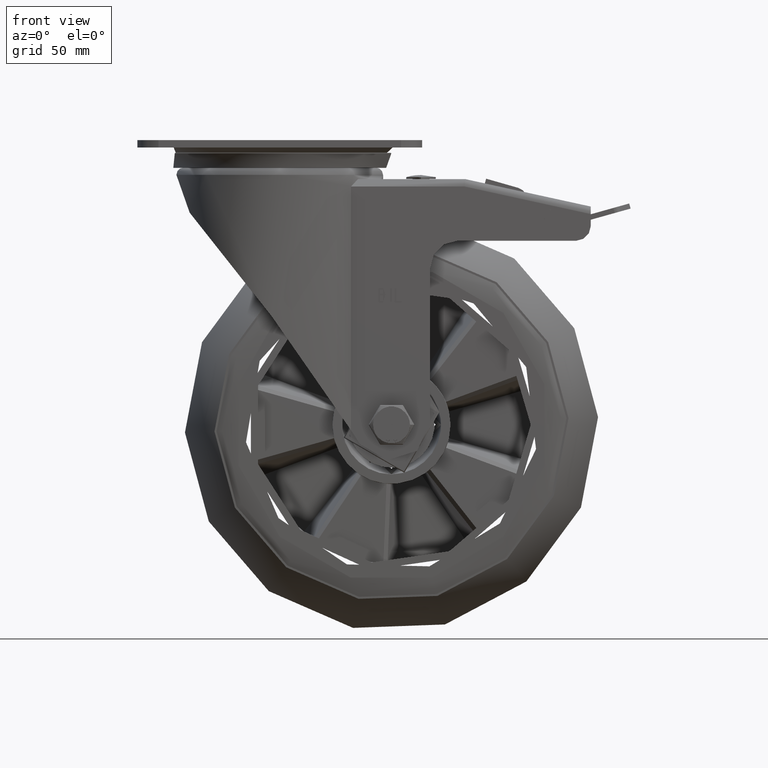
[diagram: clean part render]
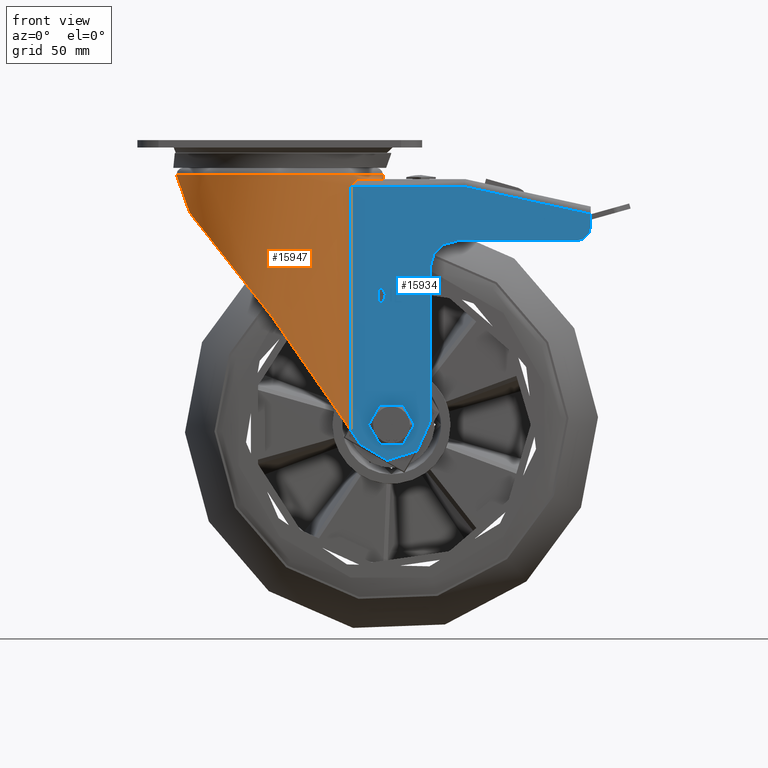
[diagram: same view with the hole feature highlighted: cylindrical wall and planar end face, labeled with their STEP entity ids]
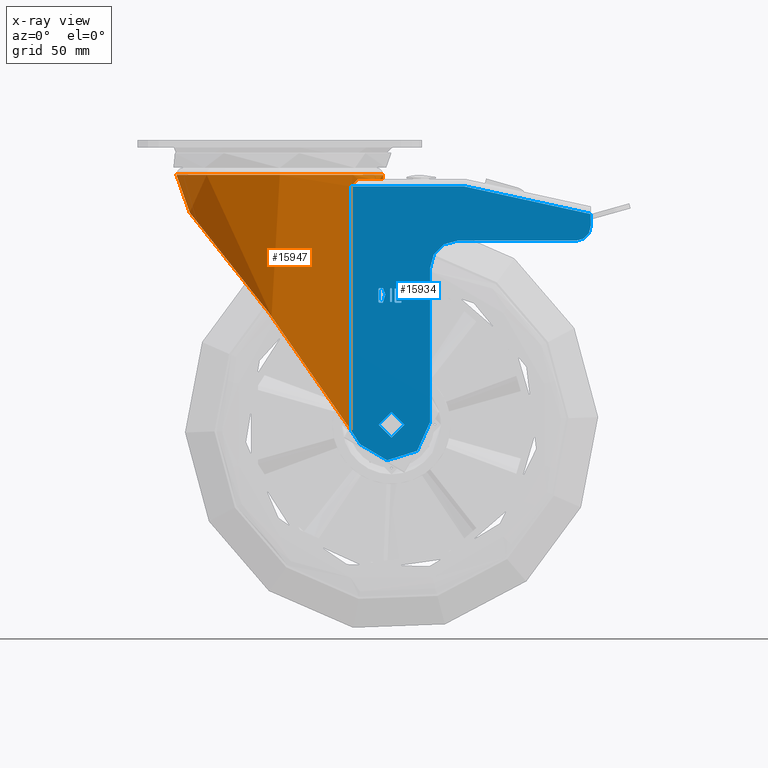
[diagram: x-ray of the same camera — body ghosted, the hole faces saturated]
A machine part, front view. The highlighted faces form one hole feature of diameter 98 mm: the cylindrical wall (entity #15947, orange) and its adjacent planar end face (entity #15934, blue) — they share a circular edge in the B-rep.
The next image is the same camera in x-ray (body ghosted, the hole faces saturated) — the bore reads through the body.
Wall:
#1439=B_SPLINE_CURVE_WITH_KNOTS('',3,(#25761,#25762,#25763,#25764,#25765,
#25766,#25767,#25768,#25769,#25770),.UNSPECIFIED.,.F.,.F.,(4,2,2,2,4),(1.2333427449953,
1.36507828815,1.4968138313047,1.68022470843184,1.86363558555898),
 .UNSPECIFIED.);
#1452=B_SPLINE_CURVE_WITH_KNOTS('',3,(#26059,#26060,#26061,#26062,#26063,
#26064,#26065,#26066,#26067,#26068),.UNSPECIFIED.,.F.,.F.,(4,2,2,2,4),(-0.630292840563673,
-0.446881963436534,-0.263471086309396,-0.131735543154698,0.),
 .UNSPECIFIED.);
#1453=B_SPLINE_CURVE_WITH_KNOTS('',3,(#26080,#26081,#26082,#26083,#26084,
#26085,#26086,#26087,#26088,#26089,#26090,#26091,#26092,#26093,#26094,#26095,
#26096,#26097,#26098,#26099,#26100,#26101,#26102,#26103,#26104,#26105,#26106,
#26107,#26108,#26109,#26110,#26111,#26112,#26113,#26114,#26115,#26116,#26117,
#26118,#26119,#26120,#26121,#26122,#26123,#26124,#26125,#26126,#26127,#26128,
#26129),.UNSPECIFIED.,.F.,.F.,(4,2,2,2,2,2,2,2,2,2,2,2,2,2,2,2,2,2,2,2,
2,2,2,2,4),(-34.3032403400869,-33.121356405522,-31.8297766614609,-29.2466171733387,
-26.6634576852165,-25.3933203126568,-24.123182940097,-22.8530455675372,
-21.5829081949775,-20.8116931009463,-20.0404780069151,-19.2692629128839,
-18.4980478188527,-17.7268327248215,-16.9556176307903,-16.184402536759,
-15.4131874427278,-14.1430500701681,-12.8729126976083,-11.6027753250486,
-10.3326379524888,-7.7494784643666,-5.1663189762444,-3.8747392321833,-2.69285529761841),
 .UNSPECIFIED.);
#2203=FACE_OUTER_BOUND('',#3173,.T.);
#3173=EDGE_LOOP('',(#11477,#11478,#11479,#11480,#11481,#11482,#11483,#11484,
#11485,#11486));
#4262=LINE('',#25782,#5353);
#4300=LINE('',#26076,#5391);
#4301=LINE('',#26079,#5392);
#5353=VECTOR('',#19136,10.);
#5391=VECTOR('',#19236,49.);
#5392=VECTOR('',#19239,10.);
#6439=CIRCLE('',#17309,49.);
#6440=CIRCLE('',#17310,49.);
#6449=CIRCLE('',#17334,49.);
#7097=VERTEX_POINT('',#25758);
#7098=VERTEX_POINT('',#25760);
#7102=VERTEX_POINT('',#25781);
#7131=VERTEX_POINT('',#25948);
#7132=VERTEX_POINT('',#25950);
#7156=VERTEX_POINT('',#26057);
#7158=VERTEX_POINT('',#26075);
#7159=VERTEX_POINT('',#26078);
#8754=EDGE_CURVE('',#7097,#7098,#1439,.F.);
#8760=EDGE_CURVE('',#7102,#7098,#4262,.T.);
#8791=EDGE_CURVE('',#7132,#7131,#6439,.T.);
#8792=EDGE_CURVE('',#7097,#7132,#6440,.T.);
#8826=EDGE_CURVE('',#7156,#7131,#1452,.F.);
#8830=EDGE_CURVE('',#7132,#7158,#4300,.T.);
#8831=EDGE_CURVE('',#7158,#7158,#6449,.T.);
#8832=EDGE_CURVE('',#7156,#7159,#4301,.T.);
#8833=EDGE_CURVE('',#7159,#7102,#1453,.T.);
#11477=ORIENTED_EDGE('',*,*,#8792,.T.);
#11478=ORIENTED_EDGE('',*,*,#8830,.T.);
#11479=ORIENTED_EDGE('',*,*,#8831,.F.);
#11480=ORIENTED_EDGE('',*,*,#8830,.F.);
#11481=ORIENTED_EDGE('',*,*,#8791,.T.);
#11482=ORIENTED_EDGE('',*,*,#8826,.F.);
#11483=ORIENTED_EDGE('',*,*,#8832,.T.);
#11484=ORIENTED_EDGE('',*,*,#8833,.T.);
#11485=ORIENTED_EDGE('',*,*,#8760,.T.);
#11486=ORIENTED_EDGE('',*,*,#8754,.F.);
#15646=CYLINDRICAL_SURFACE('',#17333,49.);
#15947=ADVANCED_FACE('',(#2203),#15646,.T.);
#17309=AXIS2_PLACEMENT_3D('',#25951,#19164,#19165);
#17310=AXIS2_PLACEMENT_3D('',#25952,#19166,#19167);
#17333=AXIS2_PLACEMENT_3D('',#26074,#19234,#19235);
#17334=AXIS2_PLACEMENT_3D('',#26077,#19237,#19238);
#19136=DIRECTION('',(0.,0.,1.));
#19164=DIRECTION('center_axis',(0.,0.,1.));
#19165=DIRECTION('ref_axis',(-1.,0.,0.));
#19166=DIRECTION('center_axis',(0.,0.,1.));
#19167=DIRECTION('ref_axis',(-1.,0.,0.));
#19234=DIRECTION('center_axis',(0.,0.,-1.));
#19235=DIRECTION('ref_axis',(-1.,0.,0.));
#19236=DIRECTION('',(0.,0.,1.));
#19237=DIRECTION('center_axis',(0.,0.,1.));
#19238=DIRECTION('ref_axis',(1.,1.22464679914735E-16,0.));
#19239=DIRECTION('',(0.,0.,-1.));
#25758=CARTESIAN_POINT('',(37.1079506305589,-32.,-18.5));
#25760=CARTESIAN_POINT('',(33.7749907475931,-35.5,-22.));
#25761=CARTESIAN_POINT('Ctrl Pts',(33.7749907475931,-35.5,-22.));
#25762=CARTESIAN_POINT('Ctrl Pts',(33.7749907475931,-35.5,-21.5608815228177));
#25763=CARTESIAN_POINT('Ctrl Pts',(33.867516356422,-35.4124752488968,-21.1110762642486));
#25764=CARTESIAN_POINT('Ctrl Pts',(34.1958587312692,-35.0955170049765,-20.310932885588));
#25765=CARTESIAN_POINT('Ctrl Pts',(34.4296971544126,-34.8670802758889,-19.9593900856269));
#25766=CARTESIAN_POINT('Ctrl Pts',(35.008738658068,-34.2872520991695,-19.3020960854189));
#25767=CARTESIAN_POINT('Ctrl Pts',(35.4182958169782,-33.8663968361622,-18.9975415200234));
#25768=CARTESIAN_POINT('Ctrl Pts',(36.2682962410604,-32.9545019837756,-18.5960140801809));
#25769=CARTESIAN_POINT('Ctrl Pts',(36.7086888572209,-32.462993317928,-18.5));
#25770=CARTESIAN_POINT('Ctrl Pts',(37.1079506305589,-32.,-18.5));
#25781=CARTESIAN_POINT('',(33.7749907475931,-35.5,-137.628128237067));
#25782=CARTESIAN_POINT('',(33.7749907475931,-35.5,-13.));
#25948=CARTESIAN_POINT('',(37.107950630559,32.,-18.5));
#25950=CARTESIAN_POINT('',(49.,-6.00076931582203E-15,-18.5));
#25951=CARTESIAN_POINT('Origin',(0.,0.,-18.5));
#25952=CARTESIAN_POINT('Origin',(0.,0.,-18.5));
#26057=CARTESIAN_POINT('',(33.7749907475931,35.5,-22.));
#26059=CARTESIAN_POINT('Ctrl Pts',(37.107950630559,32.,-18.5));
#26060=CARTESIAN_POINT('Ctrl Pts',(36.708688857221,32.462993317928,-18.5));
#26061=CARTESIAN_POINT('Ctrl Pts',(36.2682962410604,32.9545019837756,-18.5960140801809));
#26062=CARTESIAN_POINT('Ctrl Pts',(35.4182958169782,33.8663968361621,-18.9975415200233));
#26063=CARTESIAN_POINT('Ctrl Pts',(35.0087386580681,34.2872520991695,-19.3020960854189));
#26064=CARTESIAN_POINT('Ctrl Pts',(34.4296971544126,34.8670802758889,-19.9593900856269));
#26065=CARTESIAN_POINT('Ctrl Pts',(34.1958587312692,35.0955170049765,-20.310932885588));
#26066=CARTESIAN_POINT('Ctrl Pts',(33.8675163564221,35.4124752488968,-21.1110762642486));
#26067=CARTESIAN_POINT('Ctrl Pts',(33.7749907475931,35.5,-21.5608815228177));
#26068=CARTESIAN_POINT('Ctrl Pts',(33.7749907475931,35.5,-22.));
#26074=CARTESIAN_POINT('Origin',(0.,0.,-13.));
#26075=CARTESIAN_POINT('',(49.,6.00076931582203E-15,-16.5));
#26076=CARTESIAN_POINT('',(49.,-6.00076931582203E-15,-13.));
#26077=CARTESIAN_POINT('Origin',(0.,0.,-16.5));
#26078=CARTESIAN_POINT('',(33.7749907475931,35.5,-137.628128237068));
#26079=CARTESIAN_POINT('',(33.7749907475931,35.5,-13.));
#26080=CARTESIAN_POINT('Ctrl Pts',(33.7749907475931,35.5,-137.628128237068));
#26081=CARTESIAN_POINT('Ctrl Pts',(31.890673622914,37.2927547451146,-134.72857310143));
#26082=CARTESIAN_POINT('Ctrl Pts',(29.9141849445323,38.8893346304259,-131.718802318493));
#26083=CARTESIAN_POINT('Ctrl Pts',(25.6139473405629,41.8613945871662,-125.248462476776));
#26084=CARTESIAN_POINT('Ctrl Pts',(23.2748903933643,43.2020224765733,-121.771845343413));
#26085=CARTESIAN_POINT('Ctrl Pts',(16.0235733843273,46.6131544903223,-111.139798905136));
#26086=CARTESIAN_POINT('Ctrl Pts',(10.9038309000844,48.0584606433874,-103.825647254466));
#26087=CARTESIAN_POINT('Ctrl Pts',(0.485070609769471,49.277518944835,-89.3489361436049));
#26088=CARTESIAN_POINT('Ctrl Pts',(-4.81409558714125,49.0473378744351,-82.1861525379713));
#26089=CARTESIAN_POINT('Ctrl Pts',(-12.5167341274851,47.4453011114139,-72.0333466357436));
#26090=CARTESIAN_POINT('Ctrl Pts',(-15.1766436726071,46.6797262276463,-68.5702429239683));
#26091=CARTESIAN_POINT('Ctrl Pts',(-20.5508696216654,44.5756560454426,-61.6655948654499));
#26092=CARTESIAN_POINT('Ctrl Pts',(-23.2651620509435,43.2371067401469,-58.2240483158236));
#26093=CARTESIAN_POINT('Ctrl Pts',(-28.5561615277787,39.9407173630937,-51.5978458034889));
#26094=CARTESIAN_POINT('Ctrl Pts',(-31.1338935548524,37.982292476726,-48.4117220223424));
#26095=CARTESIAN_POINT('Ctrl Pts',(-35.962869987624,33.4461634923415,-42.5061510380744));
#26096=CARTESIAN_POINT('Ctrl Pts',(-38.2141078206829,30.8688294649591,-39.7864142148577));
#26097=CARTESIAN_POINT('Ctrl Pts',(-41.4225261030982,26.2616300337113,-35.9417949009816));
#26098=CARTESIAN_POINT('Ctrl Pts',(-42.6101879953735,24.3116702229906,-34.52696715018));
#26099=CARTESIAN_POINT('Ctrl Pts',(-44.7693634603241,20.0596492007216,-31.9666965445606));
#26100=CARTESIAN_POINT('Ctrl Pts',(-45.7403882367072,17.7571042945652,-30.8216448355646));
#26101=CARTESIAN_POINT('Ctrl Pts',(-47.3360343930887,12.9150255701949,-28.9456808192258));
#26102=CARTESIAN_POINT('Ctrl Pts',(-47.9616604315939,10.3701433527348,-28.2133971061128));
#26103=CARTESIAN_POINT('Ctrl Pts',(-48.7938612082863,5.19806245894011,-27.240352916525));
#26104=CARTESIAN_POINT('Ctrl Pts',(-49.0000000000001,2.57071698010402,-27.0000000000044));
#26105=CARTESIAN_POINT('Ctrl Pts',(-49.0000000000001,-2.57071698010402,
-27.0000000000044));
#26106=CARTESIAN_POINT('Ctrl Pts',(-48.7938612082863,-5.19806245894012,
-27.240352916525));
#26107=CARTESIAN_POINT('Ctrl Pts',(-47.9616604315939,-10.3701433527349,
-28.2133971061128));
#26108=CARTESIAN_POINT('Ctrl Pts',(-47.3360343930887,-12.9150255701949,
-28.9456808192258));
#26109=CARTESIAN_POINT('Ctrl Pts',(-45.7403882367072,-17.7571042945652,
-30.8216448355646));
#26110=CARTESIAN_POINT('Ctrl Pts',(-44.7693634603241,-20.0596492007216,
-31.9666965445606));
#26111=CARTESIAN_POINT('Ctrl Pts',(-42.6101879953735,-24.3116702229906,
-34.52696715018));
#26112=CARTESIAN_POINT('Ctrl Pts',(-41.4225261030982,-26.2616300337114,
-35.9417949009816));
#26113=CARTESIAN_POINT('Ctrl Pts',(-38.2141078206829,-30.8688294649591,
-39.7864142148577));
#26114=CARTESIAN_POINT('Ctrl Pts',(-35.962869987624,-33.4461634923415,-42.5061510380744));
#26115=CARTESIAN_POINT('Ctrl Pts',(-31.1338935548524,-37.982292476726,-48.4117220223424));
#26116=CARTESIAN_POINT('Ctrl Pts',(-28.5561615277787,-39.9407173630937,
-51.5978458034889));
#26117=CARTESIAN_POINT('Ctrl Pts',(-23.2651620509435,-43.2371067401469,
-58.2240483158236));
#26118=CARTESIAN_POINT('Ctrl Pts',(-20.5508696216654,-44.5756560454426,
-61.6655948654499));
#26119=CARTESIAN_POINT('Ctrl Pts',(-15.1766436726071,-46.6797262276463,
-68.5702429239683));
#26120=CARTESIAN_POINT('Ctrl Pts',(-12.5167341274852,-47.4453011114139,
-72.0333466357436));
#26121=CARTESIAN_POINT('Ctrl Pts',(-4.81409558714124,-49.0473378744351,
-82.1861525379713));
#26122=CARTESIAN_POINT('Ctrl Pts',(0.485070609769472,-49.277518944835,-89.3489361436049));
#26123=CARTESIAN_POINT('Ctrl Pts',(10.9038309000844,-48.0584606433874,-103.825647254466));
#26124=CARTESIAN_POINT('Ctrl Pts',(16.0235733843273,-46.6131544903223,-111.139798905136));
#26125=CARTESIAN_POINT('Ctrl Pts',(23.2748903933643,-43.2020224765733,-121.771845343413));
#26126=CARTESIAN_POINT('Ctrl Pts',(25.6139473405629,-41.8613945871662,-125.248462476776));
#26127=CARTESIAN_POINT('Ctrl Pts',(29.9141849445323,-38.8893346304259,-131.718802318493));
#26128=CARTESIAN_POINT('Ctrl Pts',(31.8906736229139,-37.2927547451146,-134.72857310143));
#26129=CARTESIAN_POINT('Ctrl Pts',(33.7749907475931,-35.5,-137.628128237067));
End face:
#814=FACE_BOUND('',#3155,.T.);
#815=FACE_BOUND('',#3156,.T.);
#816=FACE_BOUND('',#3157,.T.);
#817=FACE_BOUND('',#3158,.T.);
#1019=PLANE('',#17302);
#1440=B_SPLINE_CURVE_WITH_KNOTS('',3,(#25800,#25801,#25802,#25803,#25804,
#25805,#25806,#25807,#25808,#25809,#25810,#25811,#25812,#25813,#25814,#25815,
#25816,#25817,#25818),.UNSPECIFIED.,.F.,.F.,(4,3,3,3,3,3,4),(-0.60080317019458,
-0.563118176464692,-0.525433182734805,-0.487748189004918,-0.450063195275034,
-0.406211969492819,-0.362360743710606),.UNSPECIFIED.);
#1441=B_SPLINE_CURVE_WITH_KNOTS('',3,(#25820,#25821,#25822,#25823,#25824,
#25825,#25826,#25827,#25828,#25829,#25830,#25831,#25832,#25833,#25834,#25835,
#25836,#25837,#25838),.UNSPECIFIED.,.F.,.F.,(4,3,3,3,3,3,4),(-0.219643531868976,
-0.176207668124657,-0.132771804380337,-0.0995788532852541,-0.0663859021901701,
-0.0331929510950853,0.),.UNSPECIFIED.);
#1442=B_SPLINE_CURVE_WITH_KNOTS('',3,(#25842,#25843,#25844,#25845,#25846,
#25847,#25848),.UNSPECIFIED.,.F.,.F.,(4,3,4),(-0.0596402286140081,-0.0298201143070024,
0.),.UNSPECIFIED.);
#1443=B_SPLINE_CURVE_WITH_KNOTS('',3,(#25852,#25853,#25854,#25855,#25856,
#25857,#25858),.UNSPECIFIED.,.F.,.F.,(4,3,4),(-0.0620540498798335,-0.0310270249399167,
0.),.UNSPECIFIED.);
#1444=B_SPLINE_CURVE_WITH_KNOTS('',3,(#25862,#25863,#25864,#25865,#25866,
#25867,#25868,#25869,#25870,#25871,#25872,#25873),.UNSPECIFIED.,.F.,.F.,
(4,2,2,2,2,4),(-0.117389953231259,-0.113409660235466,-0.109596369111217,
-0.101178291345145,-0.0910412051839382,-0.0789306874044836),
 .UNSPECIFIED.);
#1445=B_SPLINE_CURVE_WITH_KNOTS('',3,(#25875,#25876,#25877,#25878,#25879,
#25880,#25881),.UNSPECIFIED.,.F.,.F.,(4,3,4),(-0.0715137537498869,-0.035756876874944,
0.),.UNSPECIFIED.);
#1446=B_SPLINE_CURVE_WITH_KNOTS('',3,(#25885,#25886,#25887,#25888,#25889,
#25890,#25891,#25892,#25893,#25894,#25895,#25896,#25897),.UNSPECIFIED.,
 .F.,.F.,(4,3,3,3,4),(-0.0877021978074577,-0.065860555374395,-0.044018912941333,
-0.0220094564706652,0.),.UNSPECIFIED.);
#1447=B_SPLINE_CURVE_WITH_KNOTS('',3,(#25901,#25902,#25903,#25904,#25905,
#25906,#25907,#25908,#25909,#25910,#25911,#25912,#25913),.UNSPECIFIED.,
 .F.,.F.,(4,3,3,3,4),(-0.114027724543543,-0.085410858639111,-0.0567939927346791,
-0.0283969963673392,0.),.UNSPECIFIED.);
#1448=B_SPLINE_CURVE_WITH_KNOTS('',3,(#25921,#25922,#25923,#25924,#25925,
#25926,#25927,#25928,#25929,#25930,#25931,#25932,#25933),.UNSPECIFIED.,
 .F.,.F.,(4,3,3,3,4),(-0.0857793063723791,-0.0644252927170668,-0.0430712790617538,
-0.0215356395308769,0.),.UNSPECIFIED.);
#1449=B_SPLINE_CURVE_WITH_KNOTS('',3,(#25937,#25938,#25939,#25940,#25941,
#25942,#25943),.UNSPECIFIED.,.F.,.F.,(4,3,4),(-0.0596402286144903,-0.0298201143072435,
0.),.UNSPECIFIED.);
#2190=FACE_OUTER_BOUND('',#3154,.T.);
#3154=EDGE_LOOP('',(#11372,#11373,#11374,#11375,#11376,#11377,#11378,#11379,
#11380,#11381));
#3155=EDGE_LOOP('',(#11382));
#3156=EDGE_LOOP('',(#11383,#11384,#11385,#11386,#11387,#11388,#11389));
#3157=EDGE_LOOP('',(#11390,#11391,#11392,#11393,#11394));
#3158=EDGE_LOOP('',(#11395,#11396,#11397,#11398,#11399,#11400,#11401,#11402));
#4259=LINE('',#25772,#5350);
#4260=LINE('',#25776,#5351);
#4262=LINE('',#25782,#5353);
#4263=LINE('',#25788,#5354);
#4264=LINE('',#25792,#5355);
#4265=LINE('',#25795,#5356);
#4266=LINE('',#25840,#5357);
#4267=LINE('',#25850,#5358);
#4268=LINE('',#25859,#5359);
#4269=LINE('',#25883,#5360);
#4270=LINE('',#25898,#5361);
#4271=LINE('',#25915,#5362);
#4272=LINE('',#25917,#5363);
#4273=LINE('',#25919,#5364);
#4274=LINE('',#25935,#5365);
#4275=LINE('',#25944,#5366);
#5350=VECTOR('',#19125,10.);
#5351=VECTOR('',#19130,10.);
#5353=VECTOR('',#19136,10.);
#5354=VECTOR('',#19141,10.);
#5355=VECTOR('',#19144,10.);
#5356=VECTOR('',#19147,10.);
#5357=VECTOR('',#19150,10.);
#5358=VECTOR('',#19151,10.);
#5359=VECTOR('',#19152,10.);
#5360=VECTOR('',#19153,10.);
#5361=VECTOR('',#19154,10.);
#5362=VECTOR('',#19155,10.);
#5363=VECTOR('',#19156,10.);
#5364=VECTOR('',#19157,10.);
#5365=VECTOR('',#19158,10.);
#5366=VECTOR('',#19159,10.);
#6434=CIRCLE('',#17303,1046.12512811784);
#6435=CIRCLE('',#17304,18.3);
#6436=CIRCLE('',#17305,13.);
#6437=CIRCLE('',#17306,7.);
#6438=CIRCLE('',#17307,6.1);
#7098=VERTEX_POINT('',#25760);
#7099=VERTEX_POINT('',#25771);
#7100=VERTEX_POINT('',#25775);
#7102=VERTEX_POINT('',#25781);
#7103=VERTEX_POINT('',#25783);
#7104=VERTEX_POINT('',#25785);
#7105=VERTEX_POINT('',#25787);
#7106=VERTEX_POINT('',#25789);
#7107=VERTEX_POINT('',#25791);
#7108=VERTEX_POINT('',#25793);
#7109=VERTEX_POINT('',#25796);
#7110=VERTEX_POINT('',#25798);
#7111=VERTEX_POINT('',#25799);
#7112=VERTEX_POINT('',#25819);
#7113=VERTEX_POINT('',#25839);
#7114=VERTEX_POINT('',#25841);
#7115=VERTEX_POINT('',#25849);
#7116=VERTEX_POINT('',#25851);
#7117=VERTEX_POINT('',#25860);
#7118=VERTEX_POINT('',#25861);
#7119=VERTEX_POINT('',#25874);
#7120=VERTEX_POINT('',#25882);
#7121=VERTEX_POINT('',#25884);
#7122=VERTEX_POINT('',#25899);
#7123=VERTEX_POINT('',#25900);
#7124=VERTEX_POINT('',#25914);
#7125=VERTEX_POINT('',#25916);
#7126=VERTEX_POINT('',#25918);
#7127=VERTEX_POINT('',#25920);
#7128=VERTEX_POINT('',#25934);
#7129=VERTEX_POINT('',#25936);
#8755=EDGE_CURVE('',#7098,#7099,#4259,.T.);
#8757=EDGE_CURVE('',#7099,#7100,#4260,.T.);
#8760=EDGE_CURVE('',#7102,#7098,#4262,.T.);
#8761=EDGE_CURVE('',#7102,#7103,#6434,.F.);
#8762=EDGE_CURVE('',#7103,#7104,#6435,.T.);
#8763=EDGE_CURVE('',#7104,#7105,#4263,.F.);
#8764=EDGE_CURVE('',#7106,#7105,#6436,.T.);
#8765=EDGE_CURVE('',#7106,#7107,#4264,.F.);
#8766=EDGE_CURVE('',#7108,#7107,#6437,.F.);
#8767=EDGE_CURVE('',#7100,#7108,#4265,.F.);
#8768=EDGE_CURVE('',#7109,#7109,#6438,.F.);
#8769=EDGE_CURVE('',#7110,#7111,#1440,.T.);
#8770=EDGE_CURVE('',#7111,#7112,#1441,.T.);
#8771=EDGE_CURVE('',#7112,#7113,#4266,.T.);
#8772=EDGE_CURVE('',#7113,#7114,#1442,.T.);
#8773=EDGE_CURVE('',#7114,#7115,#4267,.T.);
#8774=EDGE_CURVE('',#7115,#7116,#1443,.T.);
#8775=EDGE_CURVE('',#7116,#7110,#4268,.T.);
#8776=EDGE_CURVE('',#7117,#7118,#1444,.T.);
#8777=EDGE_CURVE('',#7118,#7119,#1445,.T.);
#8778=EDGE_CURVE('',#7119,#7120,#4269,.T.);
#8779=EDGE_CURVE('',#7120,#7121,#1446,.T.);
#8780=EDGE_CURVE('',#7121,#7117,#4270,.T.);
#8781=EDGE_CURVE('',#7122,#7123,#1447,.T.);
#8782=EDGE_CURVE('',#7123,#7124,#4271,.T.);
#8783=EDGE_CURVE('',#7124,#7125,#4272,.T.);
#8784=EDGE_CURVE('',#7125,#7126,#4273,.T.);
#8785=EDGE_CURVE('',#7126,#7127,#1448,.T.);
#8786=EDGE_CURVE('',#7127,#7128,#4274,.T.);
#8787=EDGE_CURVE('',#7128,#7129,#1449,.T.);
#8788=EDGE_CURVE('',#7129,#7122,#4275,.T.);
#11372=ORIENTED_EDGE('',*,*,#8757,.F.);
#11373=ORIENTED_EDGE('',*,*,#8755,.F.);
#11374=ORIENTED_EDGE('',*,*,#8760,.F.);
#11375=ORIENTED_EDGE('',*,*,#8761,.T.);
#11376=ORIENTED_EDGE('',*,*,#8762,.T.);
#11377=ORIENTED_EDGE('',*,*,#8763,.T.);
#11378=ORIENTED_EDGE('',*,*,#8764,.F.);
#11379=ORIENTED_EDGE('',*,*,#8765,.T.);
#11380=ORIENTED_EDGE('',*,*,#8766,.F.);
#11381=ORIENTED_EDGE('',*,*,#8767,.F.);
#11382=ORIENTED_EDGE('',*,*,#8768,.T.);
#11383=ORIENTED_EDGE('',*,*,#8769,.T.);
#11384=ORIENTED_EDGE('',*,*,#8770,.T.);
#11385=ORIENTED_EDGE('',*,*,#8771,.T.);
#11386=ORIENTED_EDGE('',*,*,#8772,.T.);
#11387=ORIENTED_EDGE('',*,*,#8773,.T.);
#11388=ORIENTED_EDGE('',*,*,#8774,.T.);
#11389=ORIENTED_EDGE('',*,*,#8775,.T.);
#11390=ORIENTED_EDGE('',*,*,#8776,.T.);
#11391=ORIENTED_EDGE('',*,*,#8777,.T.);
#11392=ORIENTED_EDGE('',*,*,#8778,.T.);
#11393=ORIENTED_EDGE('',*,*,#8779,.T.);
#11394=ORIENTED_EDGE('',*,*,#8780,.T.);
#11395=ORIENTED_EDGE('',*,*,#8781,.T.);
#11396=ORIENTED_EDGE('',*,*,#8782,.T.);
#11397=ORIENTED_EDGE('',*,*,#8783,.T.);
#11398=ORIENTED_EDGE('',*,*,#8784,.T.);
#11399=ORIENTED_EDGE('',*,*,#8785,.T.);
#11400=ORIENTED_EDGE('',*,*,#8786,.T.);
#11401=ORIENTED_EDGE('',*,*,#8787,.T.);
#11402=ORIENTED_EDGE('',*,*,#8788,.T.);
#15934=ADVANCED_FACE('',(#2190,#814,#815,#816,#817),#1019,.T.);
#17302=AXIS2_PLACEMENT_3D('',#25780,#19134,#19135);
#17303=AXIS2_PLACEMENT_3D('',#25784,#19137,#19138);
#17304=AXIS2_PLACEMENT_3D('',#25786,#19139,#19140);
#17305=AXIS2_PLACEMENT_3D('',#25790,#19142,#19143);
#17306=AXIS2_PLACEMENT_3D('',#25794,#19145,#19146);
#17307=AXIS2_PLACEMENT_3D('',#25797,#19148,#19149);
#19125=DIRECTION('',(1.,1.24196705560202E-16,0.));
#19130=DIRECTION('',(0.976953544828229,1.21334411753027E-16,-0.213452035004487));
#19134=DIRECTION('center_axis',(1.24196705560202E-16,-1.,0.));
#19135=DIRECTION('ref_axis',(-1.,-1.24196705560202E-16,0.));
#19136=DIRECTION('',(0.,0.,1.));
#19137=DIRECTION('center_axis',(1.24196705560202E-16,-1.,0.));
#19138=DIRECTION('ref_axis',(0.7593703123321,0.,0.65065868836791));
#19139=DIRECTION('center_axis',(1.24196705560202E-16,-1.,0.));
#19140=DIRECTION('ref_axis',(-1.,0.,0.));
#19141=DIRECTION('',(0.,0.,-1.));
#19142=DIRECTION('center_axis',(1.24196705560202E-16,-1.,0.));
#19143=DIRECTION('ref_axis',(-0.707106781186548,0.,0.707106781186547));
#19144=DIRECTION('',(-1.,-1.24196705560202E-16,9.10615997888087E-17));
#19145=DIRECTION('center_axis',(1.24196705560202E-16,-1.,0.));
#19146=DIRECTION('ref_axis',(0.707106781186548,0.,-0.707106781186547));
#19147=DIRECTION('',(0.,0.,1.));
#19148=DIRECTION('center_axis',(1.24196705560202E-16,-1.,0.));
#19149=DIRECTION('ref_axis',(-1.,0.,0.));
#19150=DIRECTION('',(-1.,-1.24196705560202E-16,0.));
#19151=DIRECTION('',(0.,0.,1.));
#19152=DIRECTION('',(1.,1.24196705560202E-16,0.));
#19153=DIRECTION('',(0.,0.,-1.));
#19154=DIRECTION('',(0.,0.,1.));
#19155=DIRECTION('',(0.,0.,-1.));
#19156=DIRECTION('',(1.,1.24196705560202E-16,0.));
#19157=DIRECTION('',(-0.720320213491505,-8.94613974640663E-17,-0.693641687065846));
#19158=DIRECTION('',(-1.,-1.24196705560202E-16,0.));
#19159=DIRECTION('',(0.,0.,1.));
#25760=CARTESIAN_POINT('',(33.7749907475931,-35.5,-22.));
#25771=CARTESIAN_POINT('',(87.6221043612936,-35.5,-22.));
#25772=CARTESIAN_POINT('',(124.439903522969,-35.5,-22.));
#25775=CARTESIAN_POINT('',(147.5,-35.5,-35.0825654336669));
#25776=CARTESIAN_POINT('',(103.860131181304,-35.5,-25.5478041791619));
#25780=CARTESIAN_POINT('Origin',(91.6298070459388,-35.5,-18.5));
#25781=CARTESIAN_POINT('',(33.7749907475931,-35.5,-137.628128237067));
#25782=CARTESIAN_POINT('',(33.7749907475931,-35.5,-13.));
#25783=CARTESIAN_POINT('',(37.9999999999999,-35.5,-144.182843125794));
#25784=CARTESIAN_POINT('Origin',(-843.396365277305,-35.5,-707.670403729867));
#25785=CARTESIAN_POINT('',(71.3,-35.5,-133.7));
#25786=CARTESIAN_POINT('Origin',(53.,-35.5,-133.7));
#25787=CARTESIAN_POINT('',(71.3,-35.5,-60.75));
#25788=CARTESIAN_POINT('',(71.3,-35.5,-54.6125));
#25789=CARTESIAN_POINT('',(84.3,-35.5,-47.75));
#25790=CARTESIAN_POINT('Origin',(84.3,-35.5,-60.75));
#25791=CARTESIAN_POINT('',(140.5,-35.5,-47.75));
#25792=CARTESIAN_POINT('',(100.514903522969,-35.5,-47.75));
#25793=CARTESIAN_POINT('',(147.5,-35.5,-40.75));
#25794=CARTESIAN_POINT('Origin',(140.5,-35.5,-40.75));
#25795=CARTESIAN_POINT('',(147.5,-35.5,-18.5));
#25796=CARTESIAN_POINT('',(59.1,-35.5,-135.));
#25797=CARTESIAN_POINT('Origin',(53.,-35.5,-135.));
#25798=CARTESIAN_POINT('',(48.8981624983912,-35.5,-70.1391245718889));
#25799=CARTESIAN_POINT('',(50.0626557919829,-35.5,-73.2488954362705));
#25800=CARTESIAN_POINT('Ctrl Pts',(48.8981624983912,-35.4999999999927,-70.1391245718889));
#25801=CARTESIAN_POINT('Ctrl Pts',(49.1458545831735,-35.4999999999927,-70.1391245718889));
#25802=CARTESIAN_POINT('Ctrl Pts',(49.3796189688334,-35.4999999999927,-70.1862505447321));
#25803=CARTESIAN_POINT('Ctrl Pts',(49.5994556553708,-35.4999999999927,-70.2805024904185));
#25804=CARTESIAN_POINT('Ctrl Pts',(49.8192923419084,-35.4999999999927,-70.3747544361049));
#25805=CARTESIAN_POINT('Ctrl Pts',(50.0101869436636,-35.4999999999927,-70.5028566674346));
#25806=CARTESIAN_POINT('Ctrl Pts',(50.1721394606366,-35.4999999999927,-70.6648091844076));
#25807=CARTESIAN_POINT('Ctrl Pts',(50.3340919776096,-35.4999999999927,-70.8267617013806));
#25808=CARTESIAN_POINT('Ctrl Pts',(50.4620312059587,-35.4999999999927,-71.01729407429));
#25809=CARTESIAN_POINT('Ctrl Pts',(50.5559571456838,-35.4999999999927,-71.2364063031359));
#25810=CARTESIAN_POINT('Ctrl Pts',(50.6498830854089,-35.4999999999927,-71.4555185319817));
#25811=CARTESIAN_POINT('Ctrl Pts',(50.6968460552715,-35.4999999999927,-71.6881600082195));
#25812=CARTESIAN_POINT('Ctrl Pts',(50.6968460552715,-35.4999999999927,-71.9343307318492));
#25813=CARTESIAN_POINT('Ctrl Pts',(50.6968460552715,-35.4999999999927,-72.2207813031359));
#25814=CARTESIAN_POINT('Ctrl Pts',(50.6368971812857,-35.4999999999927,-72.4838862253084));
#25815=CARTESIAN_POINT('Ctrl Pts',(50.5169994333142,-35.4999999999927,-72.7236454983668));
#25816=CARTESIAN_POINT('Ctrl Pts',(50.3971016853427,-35.4999999999927,-72.9634047714253));
#25817=CARTESIAN_POINT('Ctrl Pts',(50.2456538048989,-35.4999999999927,-73.1384880840598));
#25818=CARTESIAN_POINT('Ctrl Pts',(50.0626557919829,-35.4999999999927,-73.2488954362704));
#25819=CARTESIAN_POINT('',(48.8981624983912,-35.5,-77.139124571889));
#25820=CARTESIAN_POINT('Ctrl Pts',(50.0626557919829,-35.4999999999745,-73.2488954362705));
#25821=CARTESIAN_POINT('Ctrl Pts',(50.3427311355828,-35.4999999999806,-73.3945838780655));
#25822=CARTESIAN_POINT('Ctrl Pts',(50.5752639431669,-35.4999999999836,-73.6275694717068));
#25823=CARTESIAN_POINT('Ctrl Pts',(50.760254214735,-35.4999999999836,-73.9478522171945));
#25824=CARTESIAN_POINT('Ctrl Pts',(50.9452444863031,-35.4999999999927,-74.2681349626822));
#25825=CARTESIAN_POINT('Ctrl Pts',(51.0377396220872,-35.4999999999927,-74.6198229491037));
#25826=CARTESIAN_POINT('Ctrl Pts',(51.0377396220872,-35.4999999999927,-75.0029161764593));
#25827=CARTESIAN_POINT('Ctrl Pts',(51.0377396220872,-35.4999999999806,-75.2956695296634));
#25828=CARTESIAN_POINT('Ctrl Pts',(50.9817028196365,-35.4999999999836,-75.5720320275935));
#25829=CARTESIAN_POINT('Ctrl Pts',(50.869629214735,-35.4999999999836,-75.8320036702496));
#25830=CARTESIAN_POINT('Ctrl Pts',(50.7575556098335,-35.4999999999927,-76.0919753129057));
#25831=CARTESIAN_POINT('Ctrl Pts',(50.6046407025641,-35.4999999999927,-76.3188392390524));
#25832=CARTESIAN_POINT('Ctrl Pts',(50.4108844929268,-35.4999999999927,-76.5125954486898));
#25833=CARTESIAN_POINT('Ctrl Pts',(50.2171282832894,-35.4999999999927,-76.7063516583271));
#25834=CARTESIAN_POINT('Ctrl Pts',(49.9904273601233,-35.4999999999927,-76.8592122312697));
#25835=CARTESIAN_POINT('Ctrl Pts',(49.7307817234284,-35.4999999999927,-76.9711771675174));
#25836=CARTESIAN_POINT('Ctrl Pts',(49.4711360867336,-35.4999999999927,-77.0831421037651));
#25837=CARTESIAN_POINT('Ctrl Pts',(49.1935963450545,-35.4999999999927,-77.139124571889));
#25838=CARTESIAN_POINT('Ctrl Pts',(48.8981624983912,-35.4999999999927,-77.139124571889));
#25839=CARTESIAN_POINT('',(47.1933686583515,-35.5,-77.139124571889));
#25840=CARTESIAN_POINT('',(69.837786312155,-35.5,-77.139124571889));
#25841=CARTESIAN_POINT('',(46.7584767060415,-35.5,-76.707710016499));
#25842=CARTESIAN_POINT('Ctrl Pts',(47.1933686583515,-35.4999999999927,-77.139124571889));
#25843=CARTESIAN_POINT('Ctrl Pts',(47.0698486219216,-35.4999999999927,-77.139124571889));
#25844=CARTESIAN_POINT('Ctrl Pts',(46.9664866207625,-35.4999999999927,-77.0975225889448));
#25845=CARTESIAN_POINT('Ctrl Pts',(46.8832826548741,-35.4999999999927,-77.0143186230564));
#25846=CARTESIAN_POINT('Ctrl Pts',(46.8000786889857,-35.4999999999806,-76.931114657168));
#25847=CARTESIAN_POINT('Ctrl Pts',(46.7584767060415,-35.4999999999836,-76.8289117883155));
#25848=CARTESIAN_POINT('Ctrl Pts',(46.7584767060415,-35.4999999999836,-76.707710016499));
#25849=CARTESIAN_POINT('',(46.7584767060415,-35.5,-70.5705391272789));
#25850=CARTESIAN_POINT('',(46.7584767060415,-35.5,-46.0695622859445));
#25851=CARTESIAN_POINT('',(47.1933686583515,-35.5,-70.1391245718889));
#25852=CARTESIAN_POINT('Ctrl Pts',(46.7584767060415,-35.4999999999927,-70.5705391272789));
#25853=CARTESIAN_POINT('Ctrl Pts',(46.7584767060415,-35.4999999999927,-70.4502791504616));
#25854=CARTESIAN_POINT('Ctrl Pts',(46.8003141377355,-35.4999999999927,-70.3483117303589));
#25855=CARTESIAN_POINT('Ctrl Pts',(46.8839890011235,-35.4999999999927,-70.2646368669709));
#25856=CARTESIAN_POINT('Ctrl Pts',(46.9676638645114,-35.4999999999927,-70.1809620035829));
#25857=CARTESIAN_POINT('Ctrl Pts',(47.0707904169208,-35.4999999999927,-70.1391245718889));
#25858=CARTESIAN_POINT('Ctrl Pts',(47.1933686583515,-35.4999999999927,-70.1391245718889));
#25859=CARTESIAN_POINT('',(69.837786312155,-35.5,-70.1391245718889));
#25860=CARTESIAN_POINT('',(52.3292665719133,-35.5,-70.5705391272789));
#25861=CARTESIAN_POINT('',(52.7641585242233,-35.5,-70.1391245718889));
#25862=CARTESIAN_POINT('Ctrl Pts',(52.3292665719133,-35.5,-70.5705391272789));
#25863=CARTESIAN_POINT('Ctrl Pts',(52.3292665719133,-35.5,-70.538266988541));
#25864=CARTESIAN_POINT('Ctrl Pts',(52.3322794272581,-35.4999999999953,-70.5061746025476));
#25865=CARTESIAN_POINT('Ctrl Pts',(52.3453264012836,-35.4999999999953,-70.4443442292777));
#25866=CARTESIAN_POINT('Ctrl Pts',(52.3549361753201,-35.4999999999953,-70.4151531502361));
#25867=CARTESIAN_POINT('Ctrl Pts',(52.3967464624084,-35.4999999999953,-70.3252227959923));
#25868=CARTESIAN_POINT('Ctrl Pts',(52.437326113446,-35.4999999999953,-70.2799105311967));
#25869=CARTESIAN_POINT('Ctrl Pts',(52.5099912107361,-35.4999999999953,-70.2135536178877));
#25870=CARTESIAN_POINT('Ctrl Pts',(52.5547433236739,-35.4999999999953,-70.1853729897497));
#25871=CARTESIAN_POINT('Ctrl Pts',(52.6652389498287,-35.4999999999953,-70.1439986320431));
#25872=CARTESIAN_POINT('Ctrl Pts',(52.7194737018076,-35.5,-70.1391245718889));
#25873=CARTESIAN_POINT('Ctrl Pts',(52.7641585242233,-35.5,-70.1391245718889));
#25874=CARTESIAN_POINT('',(53.1989418078795,-35.5,-70.5705391272789));
#25875=CARTESIAN_POINT('Ctrl Pts',(52.7641585242233,-35.4999999999927,-70.1391245718889));
#25876=CARTESIAN_POINT('Ctrl Pts',(52.8857949706548,-35.4999999999927,-70.1391245718889));
#25877=CARTESIAN_POINT('Ctrl Pts',(52.9886679628721,-35.4999999999927,-70.1811974523327));
#25878=CARTESIAN_POINT('Ctrl Pts',(53.072777500875,-35.4999999999927,-70.2653432132202));
#25879=CARTESIAN_POINT('Ctrl Pts',(53.156887038878,-35.4999999999927,-70.3494889741078));
#25880=CARTESIAN_POINT('Ctrl Pts',(53.1989418078795,-35.4999999999927,-70.4512209454607));
#25881=CARTESIAN_POINT('Ctrl Pts',(53.1989418078795,-35.4999999999927,-70.5705391272789));
#25882=CARTESIAN_POINT('',(53.1989418078795,-35.5,-76.707710016499));
#25883=CARTESIAN_POINT('',(53.1989418078795,-35.5,-46.0695622859445));
#25884=CARTESIAN_POINT('',(52.3292665719133,-35.5,-76.707710016499));
#25885=CARTESIAN_POINT('Ctrl Pts',(53.1989418078795,-35.4999999999927,-76.707710016499));
#25886=CARTESIAN_POINT('Ctrl Pts',(53.1989418078795,-35.4999999999927,-76.8279699933163));
#25887=CARTESIAN_POINT('Ctrl Pts',(53.1571224876278,-35.4999999999927,-76.929937413419));
#25888=CARTESIAN_POINT('Ctrl Pts',(53.0734838471244,-35.4999999999927,-77.013612276807));
#25889=CARTESIAN_POINT('Ctrl Pts',(52.989845206621,-35.4999999999806,-77.097287140195));
#25890=CARTESIAN_POINT('Ctrl Pts',(52.886736765654,-35.4999999999836,-77.139124571889));
#25891=CARTESIAN_POINT('Ctrl Pts',(52.7641585242233,-35.4999999999836,-77.139124571889));
#25892=CARTESIAN_POINT('Ctrl Pts',(52.6406384877934,-35.4999999999927,-77.139124571889));
#25893=CARTESIAN_POINT('Ctrl Pts',(52.5372764866343,-35.4999999999927,-77.0975225889448));
#25894=CARTESIAN_POINT('Ctrl Pts',(52.4540725207459,-35.4999999999927,-77.0143186230564));
#25895=CARTESIAN_POINT('Ctrl Pts',(52.3708685548575,-35.4999999999927,-76.931114657168));
#25896=CARTESIAN_POINT('Ctrl Pts',(52.3292665719133,-35.4999999999927,-76.8289117883155));
#25897=CARTESIAN_POINT('Ctrl Pts',(52.3292665719133,-35.4999999999927,-76.707710016499));
#25898=CARTESIAN_POINT('',(52.3292665719133,-35.5,-46.0695622859445));
#25899=CARTESIAN_POINT('',(54.4226595177653,-35.5,-70.5705391272789));
#25900=CARTESIAN_POINT('',(55.2923347537315,-35.5,-70.5705391272789));
#25901=CARTESIAN_POINT('Ctrl Pts',(54.4226595177653,-35.4999999999927,-70.5705391272789));
#25902=CARTESIAN_POINT('Ctrl Pts',(54.4226595177653,-35.4999999999927,-70.4502791504616));
#25903=CARTESIAN_POINT('Ctrl Pts',(54.4644969494593,-35.4999999999927,-70.3483117303589));
#25904=CARTESIAN_POINT('Ctrl Pts',(54.5481718128473,-35.4999999999927,-70.2646368669709));
#25905=CARTESIAN_POINT('Ctrl Pts',(54.6318466762352,-35.4999999999927,-70.1809620035829));
#25906=CARTESIAN_POINT('Ctrl Pts',(54.7349732286445,-35.4999999999927,-70.1391245718889));
#25907=CARTESIAN_POINT('Ctrl Pts',(54.8575514700752,-35.4999999999927,-70.1391245718889));
#25908=CARTESIAN_POINT('Ctrl Pts',(54.9791879165068,-35.4999999999927,-70.1391245718889));
#25909=CARTESIAN_POINT('Ctrl Pts',(55.082060908724,-35.4999999999927,-70.1811974523327));
#25910=CARTESIAN_POINT('Ctrl Pts',(55.166170446727,-35.4999999999927,-70.2653432132202));
#25911=CARTESIAN_POINT('Ctrl Pts',(55.25027998473,-35.4999999999867,-70.3494889741078));
#25912=CARTESIAN_POINT('Ctrl Pts',(55.2923347537315,-35.4999999999836,-70.4512209454607));
#25913=CARTESIAN_POINT('Ctrl Pts',(55.2923347537315,-35.4999999999836,-70.5705391272789));
#25914=CARTESIAN_POINT('',(55.2923347537315,-35.5,-76.2764041297628));
#25915=CARTESIAN_POINT('',(55.2923347537315,-35.5,-45.9617358142604));
#25916=CARTESIAN_POINT('',(57.6790243960564,-35.5,-76.2764041297628));
#25917=CARTESIAN_POINT('',(74.0577433104163,-35.5,-76.2764041297628));
#25918=CARTESIAN_POINT('',(57.6320795376361,-35.5,-76.321610289723));
#25919=CARTESIAN_POINT('',(80.9089807974154,-35.5,-53.9068164840111));
#25920=CARTESIAN_POINT('',(57.5851346792158,-35.5,-77.139124571889));
#25921=CARTESIAN_POINT('Ctrl Pts',(57.6320795376361,-35.4999999999927,-76.321610289723));
#25922=CARTESIAN_POINT('Ctrl Pts',(57.7224194117874,-35.4999999999927,-76.2914728497495));
#25923=CARTESIAN_POINT('Ctrl Pts',(57.8096622293069,-35.4999999999927,-76.3184770102066));
#25924=CARTESIAN_POINT('Ctrl Pts',(57.8938079901944,-35.4999999999927,-76.4026227710941));
#25925=CARTESIAN_POINT('Ctrl Pts',(57.977953751082,-35.4999999999927,-76.4867685319817));
#25926=CARTESIAN_POINT('Ctrl Pts',(58.0200266315258,-35.4999999999897,-76.58846428045));
#25927=CARTESIAN_POINT('Ctrl Pts',(58.0200266315258,-35.4999999999836,-76.707710016499));
#25928=CARTESIAN_POINT('Ctrl Pts',(58.0200266315258,-35.4999999999927,-76.8279699933163));
#25929=CARTESIAN_POINT('Ctrl Pts',(57.9781891998318,-35.4999999999927,-76.929937413419));
#25930=CARTESIAN_POINT('Ctrl Pts',(57.8945143364438,-35.4999999999927,-77.013612276807));
#25931=CARTESIAN_POINT('Ctrl Pts',(57.8108394730559,-35.4999999999927,-77.097287140195));
#25932=CARTESIAN_POINT('Ctrl Pts',(57.7077129206465,-35.4999999999927,-77.139124571889));
#25933=CARTESIAN_POINT('Ctrl Pts',(57.5851346792158,-35.4999999999927,-77.139124571889));
#25934=CARTESIAN_POINT('',(54.8575514700753,-35.5,-77.139124571889));
#25935=CARTESIAN_POINT('',(73.9255750602921,-35.5,-77.139124571889));
#25936=CARTESIAN_POINT('',(54.4226595177653,-35.5,-76.707710016499));
#25937=CARTESIAN_POINT('Ctrl Pts',(54.8575514700753,-35.4999999999927,-77.139124571889));
#25938=CARTESIAN_POINT('Ctrl Pts',(54.7340314336454,-35.4999999999927,-77.139124571889));
#25939=CARTESIAN_POINT('Ctrl Pts',(54.6306694324862,-35.4999999999927,-77.0975225889448));
#25940=CARTESIAN_POINT('Ctrl Pts',(54.5474654665978,-35.4999999999927,-77.0143186230564));
#25941=CARTESIAN_POINT('Ctrl Pts',(54.4642615007095,-35.4999999999806,-76.931114657168));
#25942=CARTESIAN_POINT('Ctrl Pts',(54.4226595177653,-35.4999999999836,-76.8289117883155));
#25943=CARTESIAN_POINT('Ctrl Pts',(54.4226595177653,-35.4999999999836,-76.707710016499));
#25944=CARTESIAN_POINT('',(54.4226595177653,-35.5,-46.0695622859445));